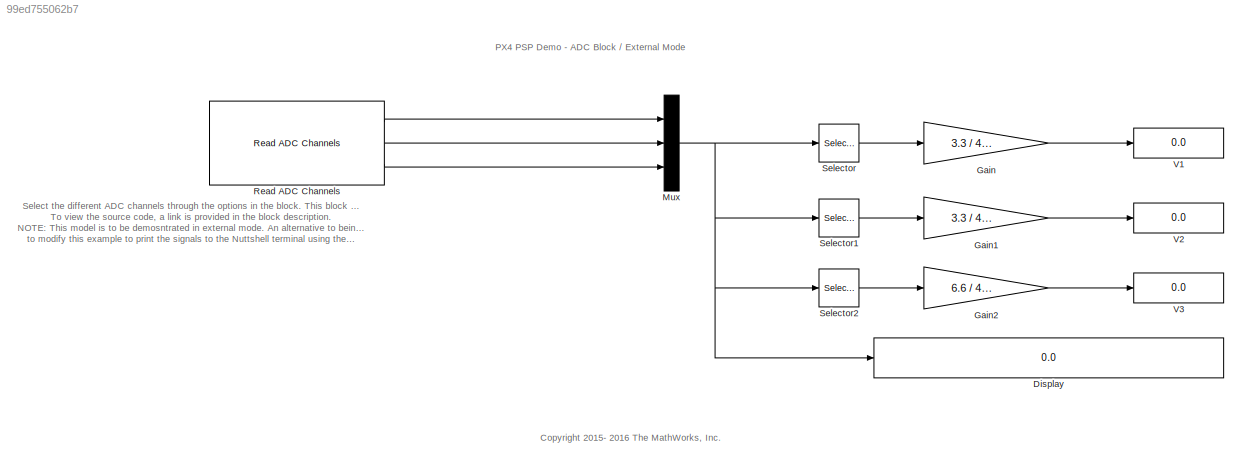
MODEL slx_99ed755062b7
KIND model
CONFIG AbsTol = auto
CONFIG EnableMultiTasking = on
CONFIG FixedStep = auto
CONFIG MaxStep = auto
CONFIG MinStep = auto
CONFIG RelTol = 1e-3
CONFIG SampleTimeConstraint = Unconstrained
CONFIG Solver = FixedStepAuto
CONFIG SolverName = FixedStepAuto
CONFIG StartTime = 0.0
CONFIG StopTime = inf
BLOCK [Display] Display
  Decimation = 1
  Ports = [1]
BLOCK [Gain] Gain
  Gain = 3.3 / 4096
  OutDataTypeStr = single
  ParamDataTypeStr = single
  SaturateOnIntegerOverflow = off
BLOCK [Gain] Gain1
  Gain = 3.3 / 4096
  OutDataTypeStr = single
  ParamDataTypeStr = single
  SaturateOnIntegerOverflow = off
BLOCK [Gain] Gain2
  Gain = 6.6 / 4096
  OutDataTypeStr = single
  ParamDataTypeStr = single
  SaturateOnIntegerOverflow = off
BLOCK [Mux] Mux
  DisplayOption = bar
  Inputs = 3
  Ports = [3, 1]
BLOCK [Reference] Read ADC Channels  REF=pixhawk_slib_ADC_serial/Read ADC Channels
  Ports = [0, 3]
  SourceBlock = pixhawk_slib_ADC_serial/Read ADC Channels
  SourceProductName = Pixhawk Target Blocks
  SourceType = codertarget.pixhawk.blocks.ADC_block
BLOCK [Selector] Selector
  IndexOptions = Index vector (dialog)
  Indices = [1]
  InputPortWidth = 3
  OutputSizes = 1
  Ports = [1, 1]
BLOCK [Selector] Selector1
  IndexOptions = Index vector (dialog)
  Indices = [2]
  InputPortWidth = 3
  OutputSizes = 1
  Ports = [1, 1]
BLOCK [Selector] Selector2
  IndexOptions = Index vector (dialog)
  Indices = [3]
  InputPortWidth = 3
  OutputSizes = 1
  Ports = [1, 1]
BLOCK [Display] V1
  Decimation = 1
  Ports = [1]
BLOCK [Display] V2
  Decimation = 1
  Ports = [1]
BLOCK [Display] V3
  Decimation = 1
  Ports = [1]
ANNOTATION (root): PX4 PSP Demo - ADC Block / External Mode
ANNOTATION (root): Select the different ADC channels through the options in the block. This block was written as a system object. System objects are another alternate method of block authoring. The source code is written as MATLAB class. To view the source code, a link is provided in the block description. NOTE: This model is to be demosntrated in external mode. An alternative to being able to view these values with...<+112ch>
ANNOTATION (root): <copyright redacted>
LINE Gain1:1 -> V2:1
LINE Gain2:1 -> V3:1
LINE Gain:1 -> V1:1
NET Mux:1 -> Display:1, Selector1:1, Selector2:1, Selector:1
LINE Read ADC Channels:1 -> Mux:1
LINE Read ADC Channels:2 -> Mux:2
LINE Read ADC Channels:3 -> Mux:3
LINE Selector1:1 -> Gain1:1
LINE Selector2:1 -> Gain2:1
LINE Selector:1 -> Gain:1
note: NET lines group one-source signal fan-out (src -> all destinations, sorted); 1:1 wires keep LINE
